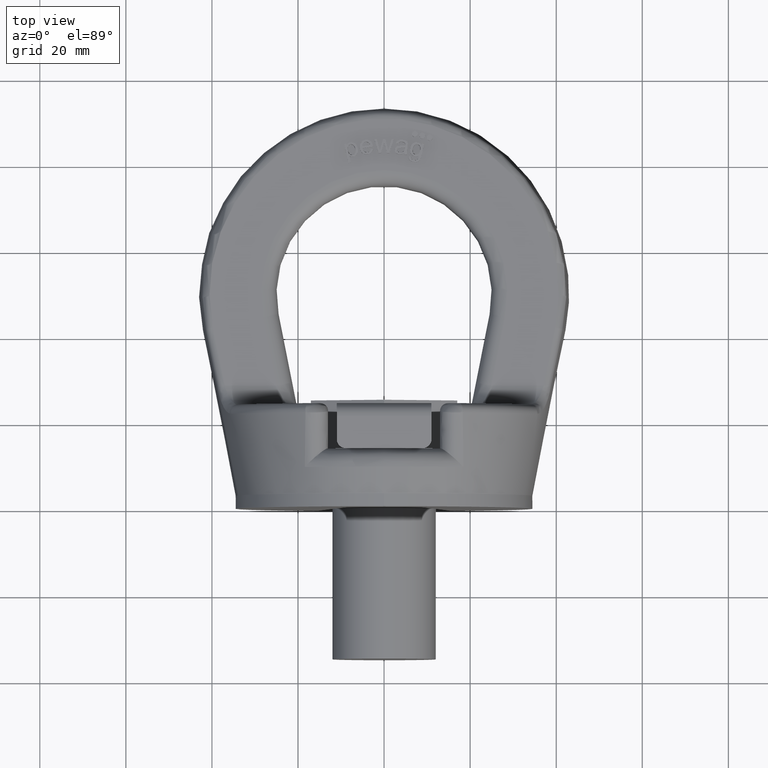
[diagram: clean part render]
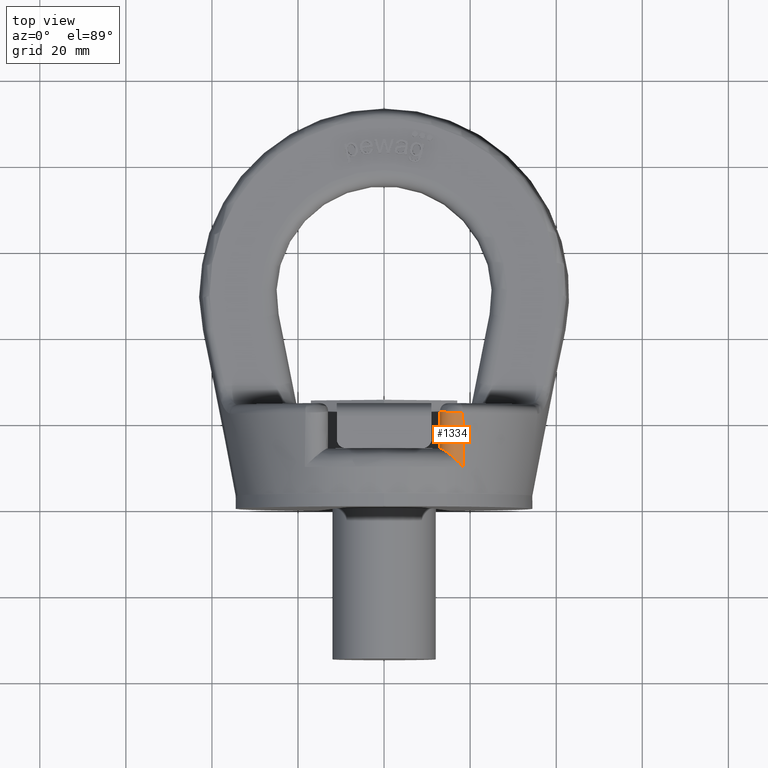
[diagram: same view with one face highlighted and labeled with its STEP entity id]
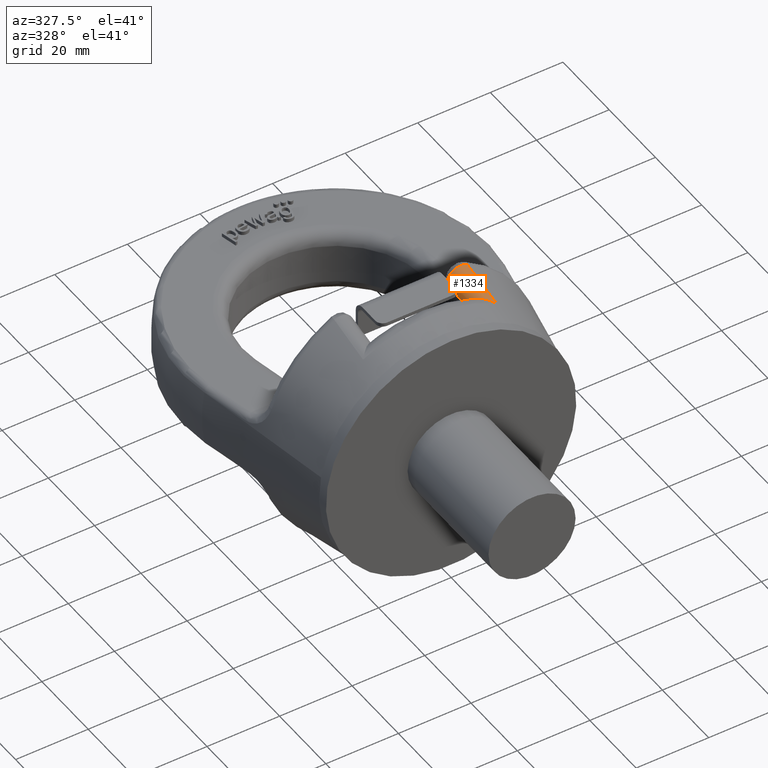
[diagram: same view with one face highlighted and labeled with its STEP entity id]
A machine part, top view. The second image highlights one B-rep face of the part: STEP entity #1334.
A second angle (auxiliary view) of the same face is appended — the face is thin or edge-on in the first view.
In plain terms, the highlighted face is a freeform B-spline surface patch.
Its self-contained STEP definition (entity closure, byte-faithful):
#1024=(
BOUNDED_SURFACE()
B_SPLINE_SURFACE(3,2,((#6962,#6963,#6964),(#6965,#6966,#6967),(#6968,#6969,
#6970),(#6971,#6972,#6973)),.UNSPECIFIED.,.F.,.F.,.F.)
B_SPLINE_SURFACE_WITH_KNOTS((4,4),(3,3),(0.,1.),(0.,1.),.UNSPECIFIED.)
GEOMETRIC_REPRESENTATION_ITEM()
RATIONAL_B_SPLINE_SURFACE(((1.,0.51542788557772,1.),(1.,0.509852135924115,
1.),(1.,0.503784994028335,1.),(1.,0.49706058970691,1.)))
REPRESENTATION_ITEM('')
SURFACE()
);
#1110=FACE_OUTER_BOUND('',#1850,.T.);
#1334=ADVANCED_FACE('',(#1110),#1024,.T.);
#1850=EDGE_LOOP('',(#2902,#2903,#2904,#2905,#2906));
#2902=ORIENTED_EDGE('',*,*,#4386,.F.);
#2903=ORIENTED_EDGE('',*,*,#4428,.T.);
#2904=ORIENTED_EDGE('',*,*,#4355,.F.);
#2905=ORIENTED_EDGE('',*,*,#4351,.F.);
#2906=ORIENTED_EDGE('',*,*,#4429,.F.);
#3962=VERTEX_POINT('',#6653);
#3963=VERTEX_POINT('',#6658);
#3966=VERTEX_POINT('',#6672);
#3996=VERTEX_POINT('',#6828);
#3997=VERTEX_POINT('',#6836);
#4351=EDGE_CURVE('',#3962,#3963,#4881,.T.);
#4355=EDGE_CURVE('',#3963,#3966,#4882,.T.);
#4386=EDGE_CURVE('',#3996,#3997,#4895,.T.);
#4428=EDGE_CURVE('',#3996,#3966,#4899,.T.);
#4429=EDGE_CURVE('',#3997,#3962,#4900,.T.);
#4881=B_SPLINE_CURVE_WITH_KNOTS('',3,(#6654,#6655,#6656,#6657),
 .UNSPECIFIED.,.F.,.F.,(4,4),(0.,1.),.UNSPECIFIED.);
#4882=B_SPLINE_CURVE_WITH_KNOTS('',3,(#6665,#6666,#6667,#6668,#6669,#6670,
#6671),.UNSPECIFIED.,.F.,.F.,(4,3,4),(0.,0.651046557973719,1.),
 .UNSPECIFIED.);
#4895=B_SPLINE_CURVE_WITH_KNOTS('',3,(#6829,#6830,#6831,#6832,#6833,#6834,
#6835),.UNSPECIFIED.,.F.,.F.,(4,3,4),(0.,0.267619673112626,1.),
 .UNSPECIFIED.);
#4899=B_SPLINE_CURVE_WITH_KNOTS('',3,(#6935,#6936,#6937,#6938,#6939,#6940,
#6941,#6942,#6943,#6944,#6945,#6946,#6947,#6948,#6949,#6950,#6951,#6952,
#6953),.UNSPECIFIED.,.F.,.F.,(4,3,3,3,3,3,4),(0.,0.170896843135785,0.331908151643927,
0.496225067732518,0.663731631185089,0.832247394135432,1.),.UNSPECIFIED.);
#4900=B_SPLINE_CURVE_WITH_KNOTS('',3,(#6954,#6955,#6956,#6957,#6958,#6959,
#6960,#6961),.UNSPECIFIED.,.F.,.F.,(4,2,2,4),(0.,0.5,0.75,1.),
 .UNSPECIFIED.);
#6653=CARTESIAN_POINT('',(13.1286976519004,13.5,29.4030133445485));
#6654=CARTESIAN_POINT('',(13.1286976519004,13.5,29.4030133445485));
#6655=CARTESIAN_POINT('',(13.0435563769547,13.5,29.0851091010672));
#6656=CARTESIAN_POINT('',(13.,13.5,28.7532209351647));
#6657=CARTESIAN_POINT('',(13.,13.5,28.4241128302466));
#6658=CARTESIAN_POINT('',(13.,13.5,28.4241128302466));
#6665=CARTESIAN_POINT('',(13.,13.5,28.4241128302466));
#6666=CARTESIAN_POINT('',(13.,15.3872435570499,28.858472818244));
#6667=CARTESIAN_POINT('',(13.,17.275040668531,29.2904329996998));
#6668=CARTESIAN_POINT('',(13.,19.1633151761258,29.7202890532426));
#6669=CARTESIAN_POINT('',(13.,20.1754088391446,29.9506870097108));
#6670=CARTESIAN_POINT('',(13.,21.1876404658448,30.1804796472694));
#6671=CARTESIAN_POINT('',(13.,22.2,30.4097065537888));
#6672=CARTESIAN_POINT('',(13.,22.2,30.4097065537888));
#6828=CARTESIAN_POINT('',(18.2884118419921,21.8491216017145,33.5902286488474));
#6829=CARTESIAN_POINT('',(18.2884118419921,21.8491216017145,33.5902286488474));
#6830=CARTESIAN_POINT('',(18.2993288069208,20.7197229204895,33.3287097337531));
#6831=CARTESIAN_POINT('',(18.3104554774158,19.5905288479823,33.0663140445697));
#6832=CARTESIAN_POINT('',(18.321804226147,18.4615583795549,32.8029709384343));
#6833=CARTESIAN_POINT('',(18.3528616588795,15.3719733327251,32.0822958227823));
#6834=CARTESIAN_POINT('',(18.3855780057219,12.2840377201631,31.3545617122287));
#6835=CARTESIAN_POINT('',(18.4202456943874,9.1982432034291,30.6179863257955));
#6836=CARTESIAN_POINT('',(18.4202456943874,9.1982432034291,30.6179863257955));
#6935=CARTESIAN_POINT('',(18.2884118419921,21.8491216017145,33.5902286488474));
#6936=CARTESIAN_POINT('',(17.9172167318218,21.8273809916795,33.7874084181351));
#6937=CARTESIAN_POINT('',(17.5044104713178,21.8126874811985,33.9206924468725));
#6938=CARTESIAN_POINT('',(17.0874575552888,21.8064035588136,33.9776933546694));
#6939=CARTESIAN_POINT('',(16.6939490366392,21.8004729683465,34.0314892196857));
#6940=CARTESIAN_POINT('',(16.2858349014272,21.8018445523342,34.0190469282608));
#6941=CARTESIAN_POINT('',(15.8963781099878,21.8104040993619,33.9414050387785));
#6942=CARTESIAN_POINT('',(15.4991354007301,21.8191347666041,33.8622109530473));
#6943=CARTESIAN_POINT('',(15.1102589763434,21.8355929746265,33.7129236375308));
#6944=CARTESIAN_POINT('',(14.7624403269566,21.8583648548309,33.5063968198184));
#6945=CARTESIAN_POINT('',(14.4080295072475,21.8815683280885,33.2959557210262));
#6946=CARTESIAN_POINT('',(14.0860947716724,21.9119956401312,33.0200232593946));
#6947=CARTESIAN_POINT('',(13.8242105428781,21.9469819063829,32.7028111879952));
#6948=CARTESIAN_POINT('',(13.5607623032767,21.982177115719,32.3837046798439));
#6949=CARTESIAN_POINT('',(13.350441823194,22.0230015409688,32.0136176806272));
#6950=CARTESIAN_POINT('',(13.2111067598194,22.0659075158416,31.6247507899198));
#6951=CARTESIAN_POINT('',(13.0723732594042,22.1086282491492,31.2375627868661));
#6952=CARTESIAN_POINT('',(12.9999999999999,22.1546310038308,30.8207153725349));
#6953=CARTESIAN_POINT('',(13.,22.2,30.4097065537888));
#6954=CARTESIAN_POINT('',(18.4202456943874,9.19824320342912,30.6179863257955));
#6955=CARTESIAN_POINT('',(17.6304847987808,10.0397125754216,31.2882887744664));
#6956=CARTESIAN_POINT('',(16.6630462704096,10.9490551186676,31.6886295985598));
#6957=CARTESIAN_POINT('',(15.1222115502762,12.2422542348839,31.5472654404812));
#6958=CARTESIAN_POINT('',(14.599145809434,12.655560702739,31.3681121357614));
#6959=CARTESIAN_POINT('',(13.6791937047708,13.2956140319681,30.6313235177428));
#6960=CARTESIAN_POINT('',(13.3039708601135,13.5,30.0574561714269));
#6961=CARTESIAN_POINT('',(13.1286976519004,13.5,29.4030133445485));
#6962=CARTESIAN_POINT('',(13.,22.6757698108292,30.517390678985));
#6963=CARTESIAN_POINT('',(13.,21.3550192313365,36.3550866059332));
#6964=CARTESIAN_POINT('',(18.2872054823359,21.9740130142583,33.6191442247784));
#6965=CARTESIAN_POINT('',(13.,18.389185850314,29.5475717092083));
#6966=CARTESIAN_POINT('',(13.0000000000193,16.9926621582201,35.4594934760308));
#6967=CARTESIAN_POINT('',(18.3285811795567,17.6874273252163,32.6268184648129));
#6968=CARTESIAN_POINT('',(13.,14.1047919615354,28.5678148202695));
#6969=CARTESIAN_POINT('',(12.9999999999887,12.6653939533602,34.5708972706868));
#6970=CARTESIAN_POINT('',(18.3729617035975,13.4030325452346,31.6218773247823));
#6971=CARTESIAN_POINT('',(13.,9.82385594367951,27.5747260211137));
#6972=CARTESIAN_POINT('',(13.,8.40369367372386,33.6966597467778));
#6973=CARTESIAN_POINT('',(18.4211015451536,9.1220991471086,30.5998089225738));